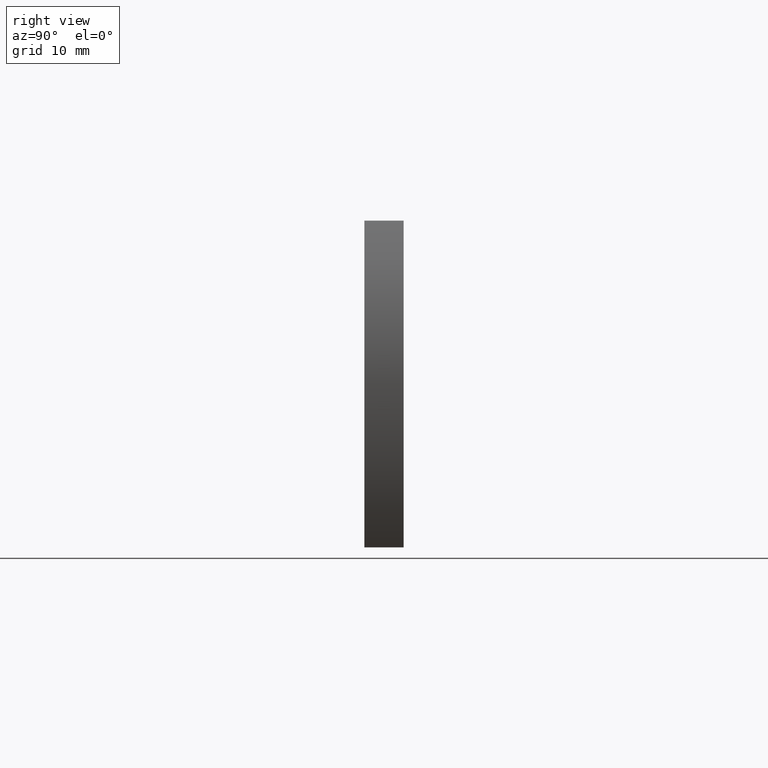
[diagram: clean part render]
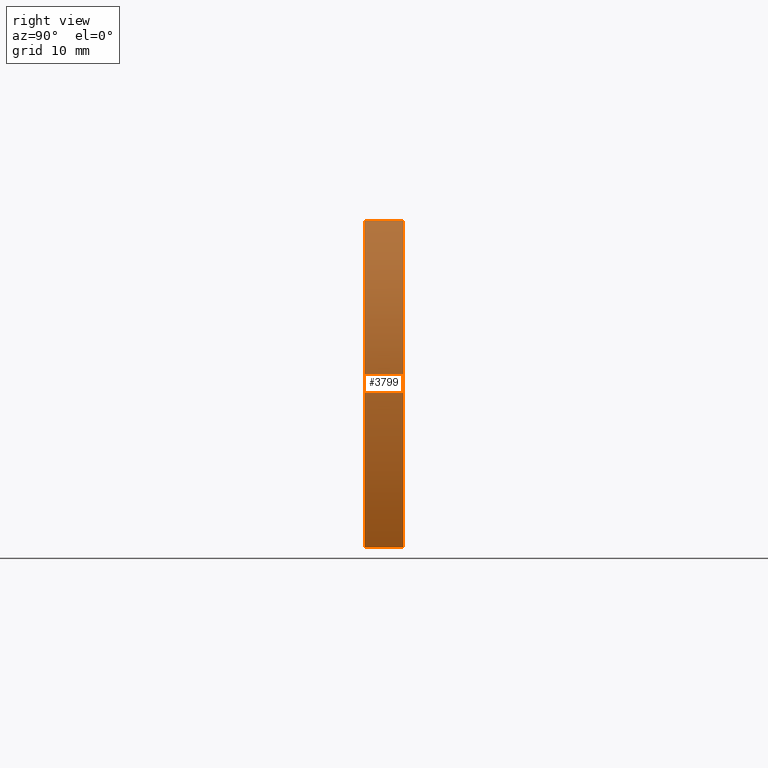
[diagram: same view with one face highlighted and labeled with its STEP entity id]
A machine part, right view. The second image highlights one B-rep face of the part: STEP entity #3799.
In plain terms, the highlighted cylindrical surface (partial cylindrical patch) has radius 51.3269 mm, axis along (-0, -1, -0).
Its self-contained STEP definition (entity closure, byte-faithful):
#127 = VECTOR ( 'NONE', #4829, 1000.000000000000000 ) ;
#281 = ORIENTED_EDGE ( 'NONE', *, *, #1561, .F. ) ;
#334 = EDGE_CURVE ( 'NONE', #5398, #8259, #4596, .T. ) ;
#1561 = EDGE_CURVE ( 'NONE', #7362, #4753, #7268, .T. ) ;
#1875 = DIRECTION ( 'NONE',  ( -0.0000000000000000000, -1.000000000000000000, -0.0000000000000000000 ) ) ;
#2481 = ORIENTED_EDGE ( 'NONE', *, *, #4930, .F. ) ;
#2686 = LINE ( 'NONE', #2923, #127 ) ;
#2690 = EDGE_CURVE ( 'NONE', #7362, #5398, #2686, .T. ) ;
#2720 = CARTESIAN_POINT ( 'NONE',  ( -1.326923076923225400, 6.000000000000000000, 0.0000000000000000000 ) ) ;
#2923 = CARTESIAN_POINT ( 'NONE',  ( 43.50000000000002100, 6.000000000000000000, 25.00000000000000000 ) ) ;
#3167 = AXIS2_PLACEMENT_3D ( 'NONE', #3609, #4218, #6131 ) ;
#3608 = AXIS2_PLACEMENT_3D ( 'NONE', #7835, #8440, #3929 ) ;
#3609 = CARTESIAN_POINT ( 'NONE',  ( -1.326923076923225400, 6.000000000000000000, 0.0000000000000000000 ) ) ;
#3693 = CARTESIAN_POINT ( 'NONE',  ( 43.50000000000002100, 6.000000000000000000, -25.00000000000000000 ) ) ;
#3700 = ORIENTED_EDGE ( 'NONE', *, *, #2690, .T. ) ;
#3799 = ADVANCED_FACE ( 'NONE', ( #4859 ), #5391, .T. ) ;
#3929 = DIRECTION ( 'NONE',  ( 0.0000000000000000000, 0.0000000000000000000, -1.000000000000000000 ) ) ;
#4218 = DIRECTION ( 'NONE',  ( 0.0000000000000000000, 1.000000000000000000, -0.0000000000000000000 ) ) ;
#4534 = EDGE_LOOP ( 'NONE', ( #4631, #2481, #281, #3700 ) ) ;
#4596 = CIRCLE ( 'NONE', #3608, 51.32692307692322900 ) ;
#4631 = ORIENTED_EDGE ( 'NONE', *, *, #334, .T. ) ;
#4640 = AXIS2_PLACEMENT_3D ( 'NONE', #2720, #7273, #8077 ) ;
#4672 = CARTESIAN_POINT ( 'NONE',  ( 43.50000000000002100, 0.0000000000000000000, -25.00000000000000000 ) ) ;
#4753 = VERTEX_POINT ( 'NONE', #8117 ) ;
#4829 = DIRECTION ( 'NONE',  ( -0.0000000000000000000, -1.000000000000000000, -0.0000000000000000000 ) ) ;
#4859 = FACE_OUTER_BOUND ( 'NONE', #4534, .T. ) ;
#4930 = EDGE_CURVE ( 'NONE', #4753, #8259, #8214, .T. ) ;
#5009 = CARTESIAN_POINT ( 'NONE',  ( 43.50000000000002100, 0.0000000000000000000, 25.00000000000000000 ) ) ;
#5391 = CYLINDRICAL_SURFACE ( 'NONE', #4640, 51.32692307692322900 ) ;
#5398 = VERTEX_POINT ( 'NONE', #5009 ) ;
#5680 = CARTESIAN_POINT ( 'NONE',  ( 43.50000000000002100, 6.000000000000000000, 25.00000000000000000 ) ) ;
#6131 = DIRECTION ( 'NONE',  ( 0.0000000000000000000, 0.0000000000000000000, -1.000000000000000000 ) ) ;
#6465 = VECTOR ( 'NONE', #1875, 1000.000000000000000 ) ;
#7268 = CIRCLE ( 'NONE', #3167, 51.32692307692322900 ) ;
#7273 = DIRECTION ( 'NONE',  ( -0.0000000000000000000, -1.000000000000000000, -0.0000000000000000000 ) ) ;
#7362 = VERTEX_POINT ( 'NONE', #5680 ) ;
#7835 = CARTESIAN_POINT ( 'NONE',  ( -1.326923076923225400, 0.0000000000000000000, 0.0000000000000000000 ) ) ;
#8077 = DIRECTION ( 'NONE',  ( 0.0000000000000000000, 0.0000000000000000000, -1.000000000000000000 ) ) ;
#8117 = CARTESIAN_POINT ( 'NONE',  ( 43.50000000000002100, 6.000000000000000000, -25.00000000000000000 ) ) ;
#8214 = LINE ( 'NONE', #3693, #6465 ) ;
#8259 = VERTEX_POINT ( 'NONE', #4672 ) ;
#8440 = DIRECTION ( 'NONE',  ( 0.0000000000000000000, 1.000000000000000000, -0.0000000000000000000 ) ) ;